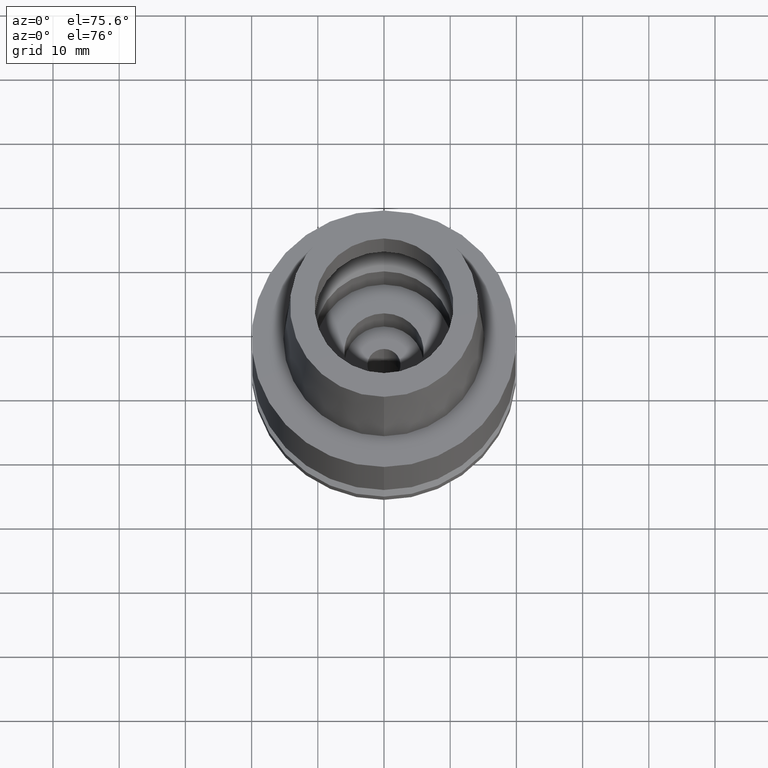
[diagram: clean part render]
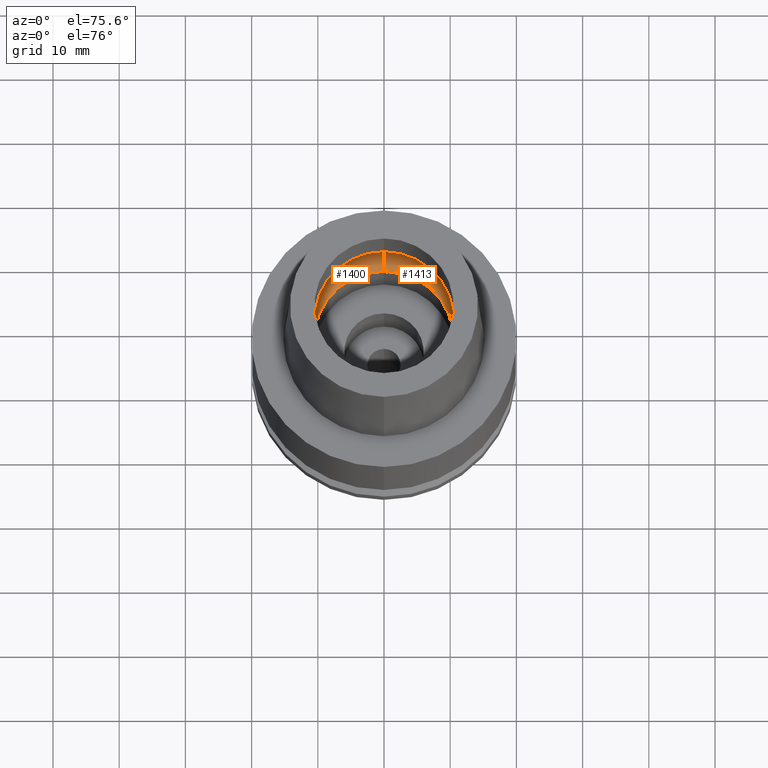
[diagram: same view with one multi-face feature highlighted, each face labeled with its STEP entity id]
A machine part, auxiliary view. The highlighted faces form ONE feature: a constant-radius fillet chain: 2 tangent blend faces with common blend radius 5 mm. The faces share edges in the B-rep.
Their STEP definitions:
[1] entity #1413 (Torus):
#606=CARTESIAN_POINT('',(0.E0,-7.75E0,4.226E0));
#607=DIRECTION('',(-1.E0,0.E0,0.E0));
#608=DIRECTION('',(0.E0,-5.5E-1,-8.351646544245E-1));
#609=AXIS2_PLACEMENT_3D('',#606,#607,#608);
#622=CARTESIAN_POINT('',(0.E0,7.75E0,4.226E0));
#623=DIRECTION('',(1.E0,0.E0,0.E0));
#624=DIRECTION('',(0.E0,5.5E-1,-8.351646544245E-1));
#625=AXIS2_PLACEMENT_3D('',#622,#623,#624);
#630=CARTESIAN_POINT('',(0.E0,0.E0,4.226E0));
#631=DIRECTION('',(0.E0,0.E0,-1.E0));
#632=DIRECTION('',(0.E0,1.E0,0.E0));
#633=AXIS2_PLACEMENT_3D('',#630,#631,#632);
#638=CARTESIAN_POINT('',(0.E0,0.E0,5.017672787747E-2));
#639=DIRECTION('',(0.E0,0.E0,1.E0));
#640=DIRECTION('',(0.E0,-1.E0,0.E0));
#641=AXIS2_PLACEMENT_3D('',#638,#639,#640);
#816=CARTESIAN_POINT('',(0.E0,1.05E1,5.017672787747E-2));
#817=VERTEX_POINT('',#816);
#818=CARTESIAN_POINT('',(0.E0,-1.05E1,5.017672787747E-2));
#819=VERTEX_POINT('',#818);
#820=CARTESIAN_POINT('',(0.E0,1.275E1,4.226E0));
#821=VERTEX_POINT('',#820);
#822=CARTESIAN_POINT('',(0.E0,-1.275E1,4.226E0));
#823=VERTEX_POINT('',#822);
#1401=CARTESIAN_POINT('',(0.E0,0.E0,4.226E0));
#1402=DIRECTION('',(0.E0,0.E0,1.E0));
#1403=DIRECTION('',(0.E0,1.E0,0.E0));
#1404=AXIS2_PLACEMENT_3D('',#1401,#1402,#1403);
#1405=TOROIDAL_SURFACE('',#1404,7.75E0,5.E0);
#1406=ORIENTED_EDGE('',*,*,#1391,.T.);
#1408=ORIENTED_EDGE('',*,*,#1407,.T.);
#1409=ORIENTED_EDGE('',*,*,#1394,.F.);
#1410=ORIENTED_EDGE('',*,*,#1365,.T.);
#1411=EDGE_LOOP('',(#1406,#1408,#1409,#1410));
#1412=FACE_OUTER_BOUND('',#1411,.F.);
#610=CIRCLE('',#609,5.E0);
#626=CIRCLE('',#625,5.E0);
#634=CIRCLE('',#633,1.275E1);
#642=CIRCLE('',#641,1.05E1);
#1365=EDGE_CURVE('',#819,#817,#642,.T.);
#1391=EDGE_CURVE('',#817,#821,#626,.T.);
#1394=EDGE_CURVE('',#819,#823,#610,.T.);
#1407=EDGE_CURVE('',#821,#823,#634,.T.);
#1413=ADVANCED_FACE('',(#1412),#1405,.F.);
[2] entity #1400 (Torus):
#598=CARTESIAN_POINT('',(0.E0,0.E0,5.017672787747E-2));
#599=DIRECTION('',(0.E0,0.E0,1.E0));
#600=DIRECTION('',(0.E0,1.E0,0.E0));
#601=AXIS2_PLACEMENT_3D('',#598,#599,#600);
#606=CARTESIAN_POINT('',(0.E0,-7.75E0,4.226E0));
#607=DIRECTION('',(-1.E0,0.E0,0.E0));
#608=DIRECTION('',(0.E0,-5.5E-1,-8.351646544245E-1));
#609=AXIS2_PLACEMENT_3D('',#606,#607,#608);
#614=CARTESIAN_POINT('',(0.E0,0.E0,4.226E0));
#615=DIRECTION('',(0.E0,0.E0,-1.E0));
#616=DIRECTION('',(0.E0,-1.E0,0.E0));
#617=AXIS2_PLACEMENT_3D('',#614,#615,#616);
#622=CARTESIAN_POINT('',(0.E0,7.75E0,4.226E0));
#623=DIRECTION('',(1.E0,0.E0,0.E0));
#624=DIRECTION('',(0.E0,5.5E-1,-8.351646544245E-1));
#625=AXIS2_PLACEMENT_3D('',#622,#623,#624);
#816=CARTESIAN_POINT('',(0.E0,1.05E1,5.017672787747E-2));
#817=VERTEX_POINT('',#816);
#818=CARTESIAN_POINT('',(0.E0,-1.05E1,5.017672787747E-2));
#819=VERTEX_POINT('',#818);
#820=CARTESIAN_POINT('',(0.E0,1.275E1,4.226E0));
#821=VERTEX_POINT('',#820);
#822=CARTESIAN_POINT('',(0.E0,-1.275E1,4.226E0));
#823=VERTEX_POINT('',#822);
#1386=CARTESIAN_POINT('',(0.E0,0.E0,4.226E0));
#1387=DIRECTION('',(0.E0,0.E0,1.E0));
#1388=DIRECTION('',(0.E0,1.E0,0.E0));
#1389=AXIS2_PLACEMENT_3D('',#1386,#1387,#1388);
#1390=TOROIDAL_SURFACE('',#1389,7.75E0,5.E0);
#1392=ORIENTED_EDGE('',*,*,#1391,.F.);
#1393=ORIENTED_EDGE('',*,*,#1381,.T.);
#1395=ORIENTED_EDGE('',*,*,#1394,.T.);
#1397=ORIENTED_EDGE('',*,*,#1396,.T.);
#1398=EDGE_LOOP('',(#1392,#1393,#1395,#1397));
#1399=FACE_OUTER_BOUND('',#1398,.F.);
#602=CIRCLE('',#601,1.05E1);
#610=CIRCLE('',#609,5.E0);
#618=CIRCLE('',#617,1.275E1);
#626=CIRCLE('',#625,5.E0);
#1381=EDGE_CURVE('',#817,#819,#602,.T.);
#1391=EDGE_CURVE('',#817,#821,#626,.T.);
#1394=EDGE_CURVE('',#819,#823,#610,.T.);
#1396=EDGE_CURVE('',#823,#821,#618,.T.);
#1400=ADVANCED_FACE('',(#1399),#1390,.F.);